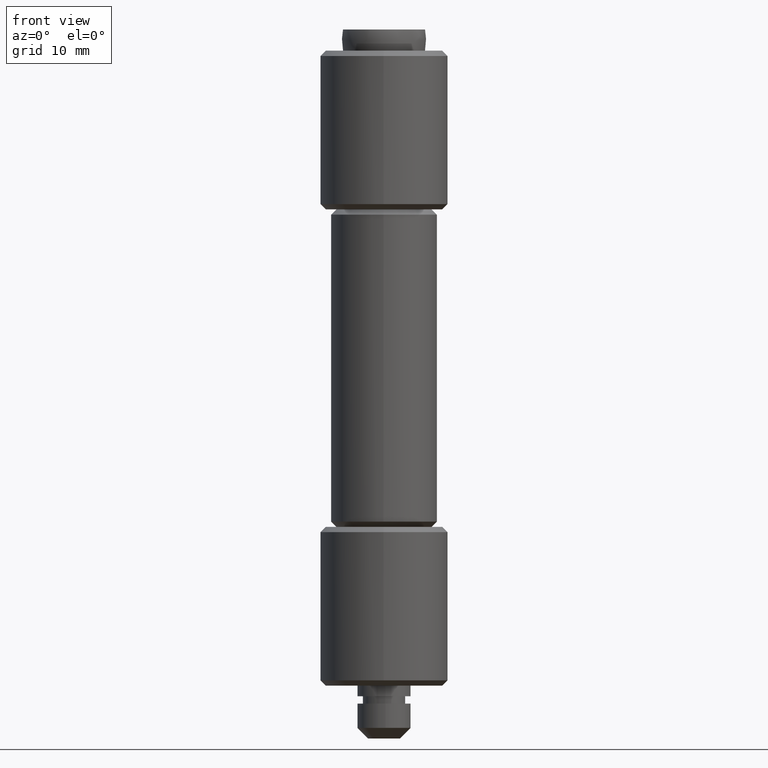
[diagram: clean part render]
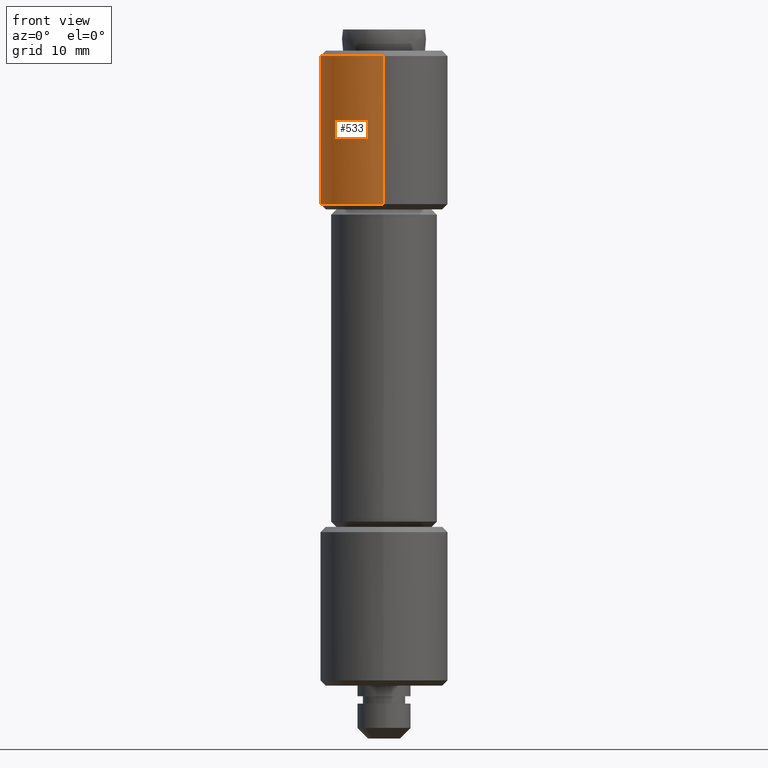
[diagram: same view with one face highlighted and labeled with its STEP entity id]
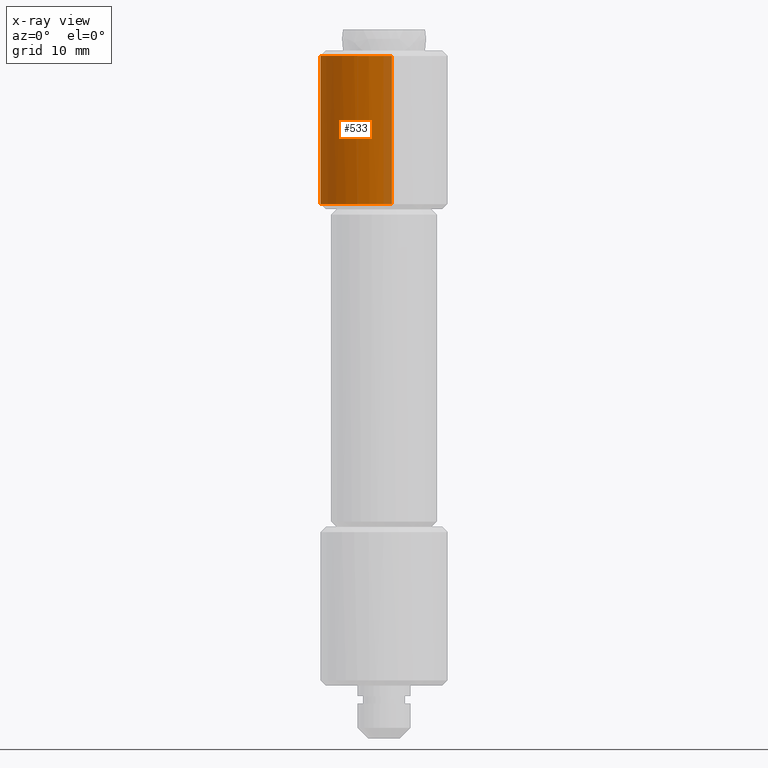
[diagram: x-ray of the same camera — body ghosted, the highlighted face saturated]
A machine part, front view. The second image highlights one B-rep face of the part: STEP entity #533.
The next image is the same camera in x-ray: the body ghosted, the highlighted face saturated — about 12% of this face is hidden behind the body in this view.
In plain terms, the highlighted face is a freeform B-spline surface patch.
Its self-contained STEP definition (entity closure, byte-faithful):
#66=CARTESIAN_POINT('',(-2.425292591935195,5.487982857436113,19.499999999999300));
#67=VERTEX_POINT('',#66);
#68=CARTESIAN_POINT('',(0.744758561494347,5.953598465213299,19.500000000000000));
#69=VERTEX_POINT('',#68);
#70=CARTESIAN_POINT('',(-2.425292591935196,5.487982857436114,19.499999999999304));
#71=CARTESIAN_POINT('',(-1.266693703520049,6.0,19.500000000000000));
#72=CARTESIAN_POINT('',(0.0,6.0,19.500000000000000));
#73=CARTESIAN_POINT('',(0.373824784392168,5.999999999999999,19.500000000000004));
#74=CARTESIAN_POINT('',(0.744758561494347,5.953598465213299,19.500000000000004));
#82=(BOUNDED_CURVE()B_SPLINE_CURVE(2,(#70,#71,#72,#73,#74),.UNSPECIFIED.,.F.,.U.)B_SPLINE_CURVE_WITH_KNOTS((3,2,3),(0.181361578459497,0.250000000000000,0.271473661255216),.UNSPECIFIED.)CURVE()GEOMETRIC_REPRESENTATION_ITEM()RATIONAL_B_SPLINE_CURVE((0.883326595751424,0.919585087122910,1.0,0.974842040941000,0.954005949807644))REPRESENTATION_ITEM(''));
#83=EDGE_CURVE('',#67,#69,#82,.T.);
#126=CARTESIAN_POINT('',(-0.052359213022021,-5.999771538384714,19.500000000000039));
#127=VERTEX_POINT('',#126);
#184=CARTESIAN_POINT('',(-6.0,0.0,19.500000000000000));
#185=VERTEX_POINT('',#184);
#186=CARTESIAN_POINT('',(-6.0,0.0,19.500000000000000));
#187=CARTESIAN_POINT('',(-6.0,3.908220015537823,19.500000000000007));
#188=CARTESIAN_POINT('',(-2.425292591935196,5.487982857436114,19.499999999999304));
#196=(BOUNDED_CURVE()B_SPLINE_CURVE(2,(#186,#187,#188),.UNSPECIFIED.,.F.,.U.)B_SPLINE_CURVE_WITH_KNOTS((3,3),(0.0,0.181361578459497),.UNSPECIFIED.)CURVE()GEOMETRIC_REPRESENTATION_ITEM()RATIONAL_B_SPLINE_CURVE((1.0,0.787521694063637,0.883326595751424))REPRESENTATION_ITEM(''));
#197=EDGE_CURVE('',#185,#67,#196,.T.);
#199=CARTESIAN_POINT('',(-0.052359213022021,-5.999771538384714,19.500000000000039));
#200=CARTESIAN_POINT('',(-6.000000000000001,-5.947867263443852,19.500000000000004));
#201=CARTESIAN_POINT('',(-6.0,0.0,19.500000000000000));
#209=(BOUNDED_CURVE()B_SPLINE_CURVE(2,(#199,#200,#201),.UNSPECIFIED.,.F.,.U.)B_SPLINE_CURVE_WITH_KNOTS((3,3),(0.751539894338719,1.0),.UNSPECIFIED.)CURVE()GEOMETRIC_REPRESENTATION_ITEM()RATIONAL_B_SPLINE_CURVE((0.996414028091769,0.708910879624548,1.0))REPRESENTATION_ITEM(''));
#210=EDGE_CURVE('',#127,#185,#209,.T.);
#271=CARTESIAN_POINT('',(-5.845308919046232,1.353648270868740,5.500000000025587));
#272=VERTEX_POINT('',#271);
#273=CARTESIAN_POINT('',(-6.0,0.0,5.500000000000000));
#274=VERTEX_POINT('',#273);
#275=CARTESIAN_POINT('',(-5.845308919046232,1.353648270868739,5.500000000025587));
#276=CARTESIAN_POINT('',(-6.0,0.685662964304165,5.500000000000000));
#277=CARTESIAN_POINT('',(-6.0,0.0,5.500000000000000));
#285=(BOUNDED_CURVE()B_SPLINE_CURVE(2,(#275,#276,#277),.UNSPECIFIED.,.F.,.U.)B_SPLINE_CURVE_WITH_KNOTS((3,3),(0.961422971772483,1.0),.UNSPECIFIED.)CURVE()GEOMETRIC_REPRESENTATION_ITEM()RATIONAL_B_SPLINE_CURVE((0.923556557423140,0.954804200120740,1.0))REPRESENTATION_ITEM(''));
#286=EDGE_CURVE('',#272,#274,#285,.T.);
#344=CARTESIAN_POINT('',(-0.052359213351879,5.999771538431190,5.500000000049290));
#345=VERTEX_POINT('',#344);
#351=CARTESIAN_POINT('',(0.744768012531684,5.953597282946639,5.500000000000000));
#352=VERTEX_POINT('',#351);
#353=CARTESIAN_POINT('',(0.744768012531684,5.953597282946639,5.500000000000000));
#354=CARTESIAN_POINT('',(0.373829565254291,6.000000000000001,5.500000000000000));
#355=CARTESIAN_POINT('',(0.0,6.0,5.500000000000000));
#356=CARTESIAN_POINT('',(-0.026180105285428,6.000000000000001,5.500000000000000));
#357=CARTESIAN_POINT('',(-0.052359213351879,5.999771538431190,5.500000000049290));
#365=(BOUNDED_CURVE()B_SPLINE_CURVE(2,(#353,#354,#355,#356,#357),.UNSPECIFIED.,.F.,.U.)B_SPLINE_CURVE_WITH_KNOTS((3,2,3),(0.728526071026313,0.750000000000000,0.751539894356195),.UNSPECIFIED.)CURVE()GEOMETRIC_REPRESENTATION_ITEM()RATIONAL_B_SPLINE_CURVE((0.954005430268924,0.974841727289301,1.0,0.998195901541525,0.996414028051324))REPRESENTATION_ITEM(''));
#366=EDGE_CURVE('',#352,#345,#365,.T.);
#383=CARTESIAN_POINT('',(-0.052359213044773,-5.999771538384551,5.500000000000000));
#384=VERTEX_POINT('',#383);
#400=CARTESIAN_POINT('',(-6.0,0.0,5.500000000000000));
#401=CARTESIAN_POINT('',(-6.000000000000001,-5.947867263461753,5.500000000000000));
#402=CARTESIAN_POINT('',(-0.052359213044773,-5.999771538384551,5.500000000000000));
#410=(BOUNDED_CURVE()B_SPLINE_CURVE(2,(#400,#401,#402),.UNSPECIFIED.,.F.,.U.)B_SPLINE_CURVE_WITH_KNOTS((3,3),(0.0,0.248460105661811),.UNSPECIFIED.)CURVE()GEOMETRIC_REPRESENTATION_ITEM()RATIONAL_B_SPLINE_CURVE((1.0,0.708910879623927,0.996414028092996))REPRESENTATION_ITEM(''));
#411=EDGE_CURVE('',#274,#384,#410,.T.);
#430=CARTESIAN_POINT('',(-0.052359213351879,5.999771538431190,5.500000000049291));
#431=CARTESIAN_POINT('',(-4.778918510675537,5.958523479719795,5.499999999999999));
#432=CARTESIAN_POINT('',(-5.845308919046232,1.353648270868740,5.500000000025588));
#440=(BOUNDED_CURVE()B_SPLINE_CURVE(2,(#430,#431,#432),.UNSPECIFIED.,.F.,.U.)B_SPLINE_CURVE_WITH_KNOTS((3,3),(0.751539894356196,0.961422971772482),.UNSPECIFIED.)CURVE()GEOMETRIC_REPRESENTATION_ITEM()RATIONAL_B_SPLINE_CURVE((0.996414028051323,0.753549905467021,0.923556557423139))REPRESENTATION_ITEM(''));
#441=EDGE_CURVE('',#345,#272,#440,.T.);
#485=CARTESIAN_POINT('',(-0.052359213022021,-5.999771538384714,19.500000000000039));
#486=CARTESIAN_POINT('',(-0.052359213044773,-5.999771538384551,5.500000000000000));
#487=QUASI_UNIFORM_CURVE('',1,(#485,#486),.UNSPECIFIED.,.F.,.U.);
#488=EDGE_CURVE('',#127,#384,#487,.T.);
#492=CARTESIAN_POINT('',(0.744758561494347,5.953598465213299,19.500000000000000));
#493=CARTESIAN_POINT('',(0.744768012531684,5.953597282946639,5.500000000000000));
#494=QUASI_UNIFORM_CURVE('',1,(#492,#493),.UNSPECIFIED.,.F.,.U.);
#495=EDGE_CURVE('',#69,#352,#494,.T.);
#500=CARTESIAN_POINT('',(-0.052359212990243,-5.999771538385026,19.850000000000009));
#501=CARTESIAN_POINT('',(-6.052130751375269,-5.947412325394783,19.850000000000001));
#502=CARTESIAN_POINT('',(-5.999771538385026,0.052359212990243,19.850000000000009));
#503=CARTESIAN_POINT('',(-5.947412325394783,6.052130751375269,19.850000000000001));
#504=CARTESIAN_POINT('',(0.052359212990243,5.999771538385026,19.850000000000009));
#505=CARTESIAN_POINT('',(0.399900953749042,5.996738587561654,19.850000000000001));
#506=CARTESIAN_POINT('',(0.744768012478976,5.953597282953231,19.850000000000005));
#507=CARTESIAN_POINT('',(-0.052359212990243,-5.999771538385026,5.141249999999999));
#508=CARTESIAN_POINT('',(-6.052130751375269,-5.947412325394783,5.141249999999999));
#509=CARTESIAN_POINT('',(-5.999771538385026,0.052359212990243,5.141249999999999));
#510=CARTESIAN_POINT('',(-5.947412325394783,6.052130751375269,5.141249999999999));
#511=CARTESIAN_POINT('',(0.052359212990243,5.999771538385026,5.141249999999999));
#512=CARTESIAN_POINT('',(0.399900953749042,5.996738587561654,5.141249999999999));
#513=CARTESIAN_POINT('',(0.744768012478976,5.953597282953231,5.141249999999999));
#521=(BOUNDED_SURFACE()B_SPLINE_SURFACE(2,1,((#500,#507),(#501,#508),(#502,#509),(#503,#510),(#504,#511),(#505,#512),(#506,#513)),.UNSPECIFIED.,.F.,.F.,.U.)B_SPLINE_SURFACE_WITH_KNOTS((3,2,2,3),(2,2),(0.0,9.941125496954278,19.882250993908560,20.677541033664902),(0.0,14.708750000000011),.UNSPECIFIED.)GEOMETRIC_REPRESENTATION_ITEM()RATIONAL_B_SPLINE_SURFACE(((1.0,1.0),(0.707106781186548,0.707106781186548),(1.0,1.0),(0.707106781186548,0.707106781186548),(1.0,1.0),(0.976568542494924,0.976568542494924),(0.956886118190660,0.956886118190660)))REPRESENTATION_ITEM('')SURFACE());
#522=ORIENTED_EDGE('',*,*,#197,.T.);
#523=ORIENTED_EDGE('',*,*,#83,.T.);
#524=ORIENTED_EDGE('',*,*,#495,.T.);
#525=ORIENTED_EDGE('',*,*,#366,.T.);
#526=ORIENTED_EDGE('',*,*,#441,.T.);
#527=ORIENTED_EDGE('',*,*,#286,.T.);
#528=ORIENTED_EDGE('',*,*,#411,.T.);
#529=ORIENTED_EDGE('',*,*,#488,.F.);
#530=ORIENTED_EDGE('',*,*,#210,.T.);
#531=EDGE_LOOP('',(#522,#523,#524,#525,#526,#527,#528,#529,#530));
#532=FACE_OUTER_BOUND('',#531,.T.);
#533=ADVANCED_FACE('',(#532),#521,.T.);